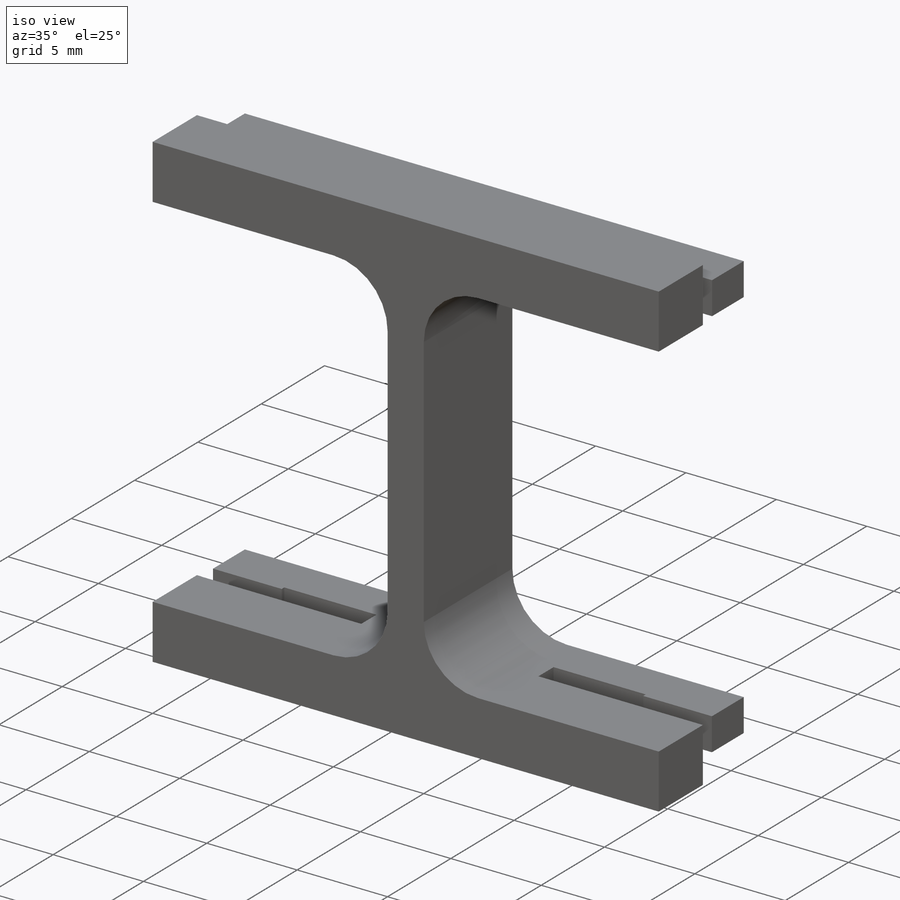
[diagram: iso view]
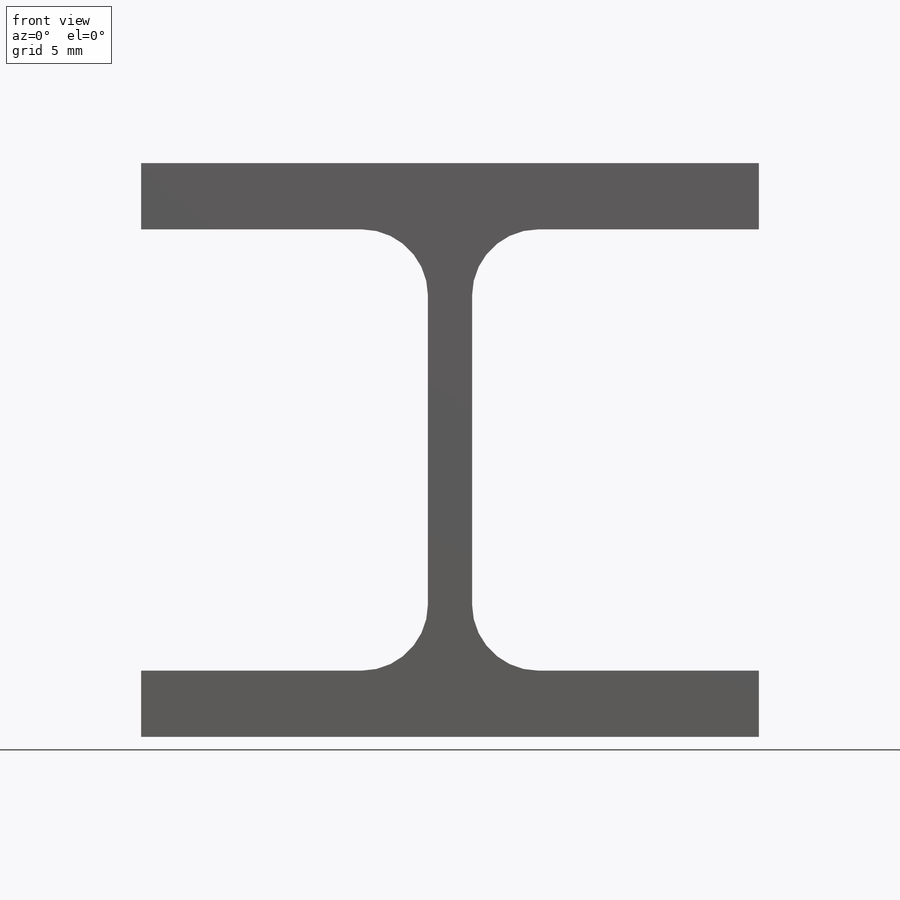
[diagram: front view]
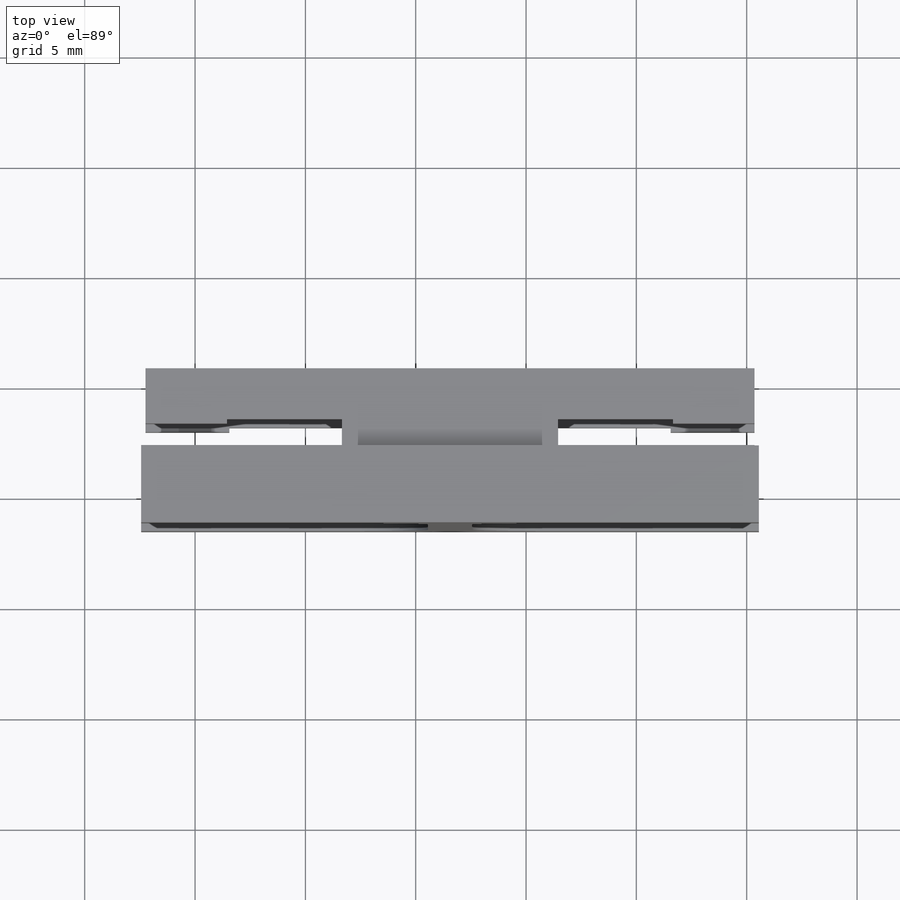
[diagram: top view]
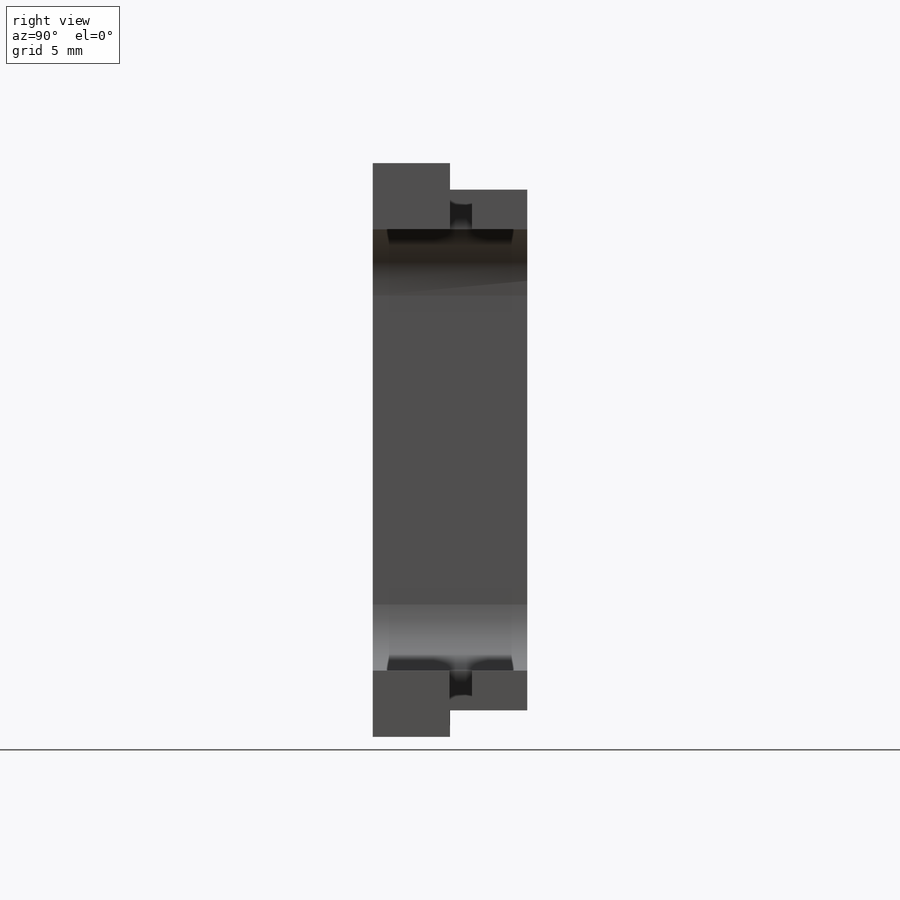
[diagram: right view]
SOLIDWORKS PART (.sldprt)
format: sldprt  version: not decoded by parser v0  size: 534,016 bytes
history: native  units: mm
features: sketch x21, cut_extrude x17, extrude x4, plane x3, material x1, fillet x1 (+10 scaffold rows collapsed)
feature tree (57):
  scaffold x10  (default folders/planes/origin — collapsed)
  material  "Material <not specified>"
  plane  "Ön Düzlem"
  plane  "Üst Düzlem"
  plane  "Sağ Düzlem"
  sketch  "Sketch1"  dims[D1=30.0mm D2=22.0mm]
  extrude  "Boss-Extrude1"  Depth=2mm
  sketch  "Sketch2"  dims[D1=20.0mm D2=13.0mm D3=1.0mm D4=1.0mm D5=13.0mm D6=1.0mm]
  cut_extrude  "Cut-Extrude1"  Depth=2mm
  fillet  "Fillet1"  Radius=3mm
  sketch  "Sketch3"
  extrude  "Boss-Extrude2"  Depth=20mm
  sketch  "Sketch4"
  extrude  "Boss-Extrude3"  Depth=2mm
  sketch  "Sketch5"
  extrude  "Boss-Extrude4"  Depth=2mm
  sketch  "Sketch6"  dims[D1=~3.984856mm]
  cut_extrude  "Cut-Extrude2"  Depth=1.2mm
  sketch  "Sketch7"  dims[D1=4.0mm]
  cut_extrude  "Cut-Extrude3"  Depth=1.2mm
  sketch  "Sketch8"
  cut_extrude  "Cut-Extrude4"  Depth=1.2mm
  sketch  "Sketch9"
  cut_extrude  "Cut-Extrude5"  Depth=1.2mm
  sketch  "Sketch10"  dims[D1=1.0mm D2=2.6mm D3=2.6mm]
  cut_extrude  "Cut-Extrude7"  [1 undecoded]
  sketch  "Sketch12"  dims[D1=5.2mm D2=1.2mm D3=5.2mm]
  cut_extrude  "Cut-Extrude8"  [1 undecoded]
  sketch  "Sketch13"
  cut_extrude  "Cut-Extrude9"  [1 undecoded]
  sketch  "Sketch14"
  cut_extrude  "Cut-Extrude10"  Depth=5mm
  sketch  "Sketch15"  dims[D1=2.6mm D2=2.6mm D3=1.0mm D4=1.0mm]
  cut_extrude  "Cut-Extrude11"  Depth=5mm
  sketch  "Sketch16"  dims[D1=5.1mm D2=5.1mm D3=1.2mm D4=1.2mm]
  cut_extrude  "Cut-Extrude12"  Depth=5mm
  sketch  "Sketch17"  dims[D1=2.5mm]
  cut_extrude  "Cut-Extrude13"  [1 undecoded]
  sketch  "Sketch18"
  cut_extrude  "Cut-Extrude14"  Depth=5mm
  sketch  "Sketch19"  dims[D1=0.0mm D2=0.0mm]
  cut_extrude  "Cut-Extrude16"  [1 undecoded]
  sketch  "Sketch20"  dims[D1=0.0mm D2=4.0mm]
  cut_extrude  "Cut-Extrude18"  Depth=5mm
  sketch  "Sketch24"  dims[D1=0.5mm]
  cut_extrude  "Cut-Extrude19"  Depth=100mm
  sketch  "Sketch25"  dims[D1=1.0mm D2=1.0mm]
  cut_extrude  "Cut-Extrude20"  Depth=3.5mm
decode coverage: 30 of 43 modeling features carry decoded parameters
note: ~ marks probable driven/reference dimensions
note: 5 parameter values undecoded
summary: no parameter record found for 5 features
note: suppression state not decoded; provenance and decode notes live in map.json
